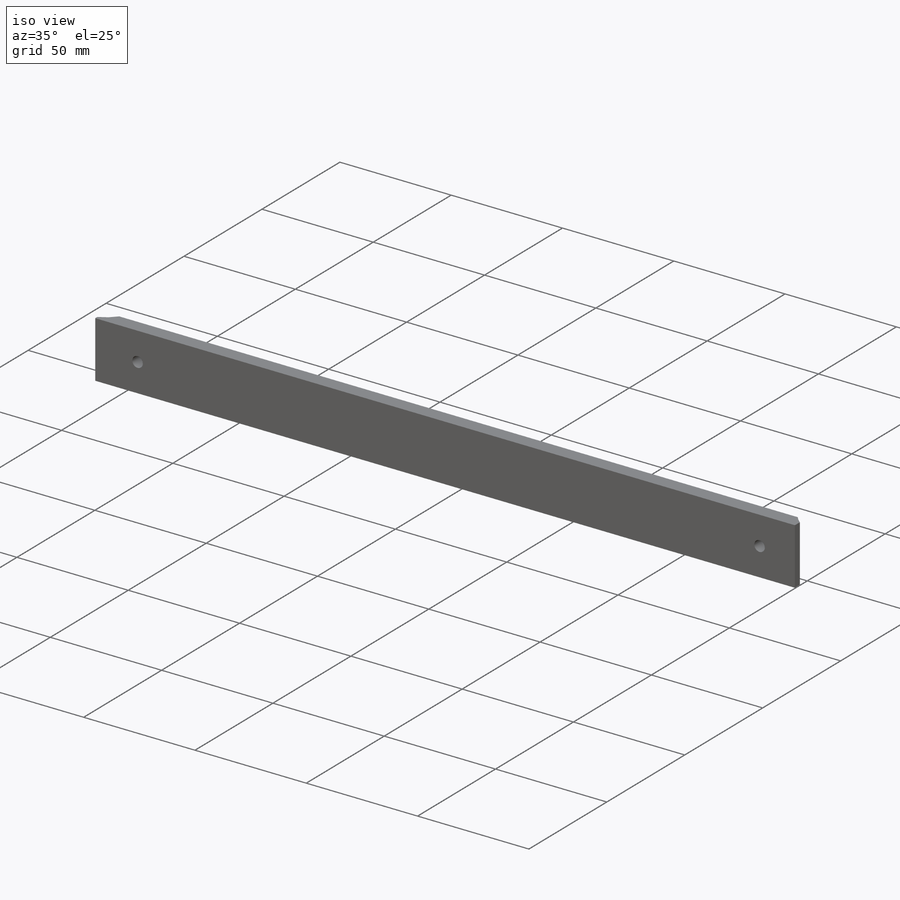
[diagram: iso view]
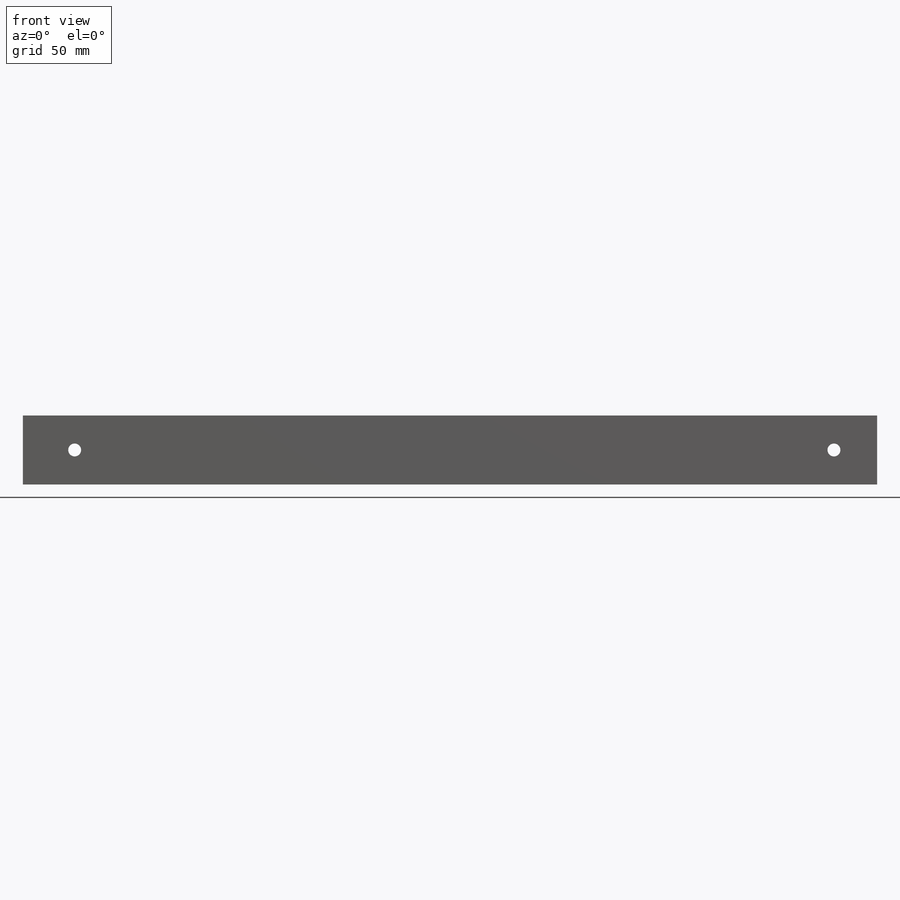
[diagram: front view]
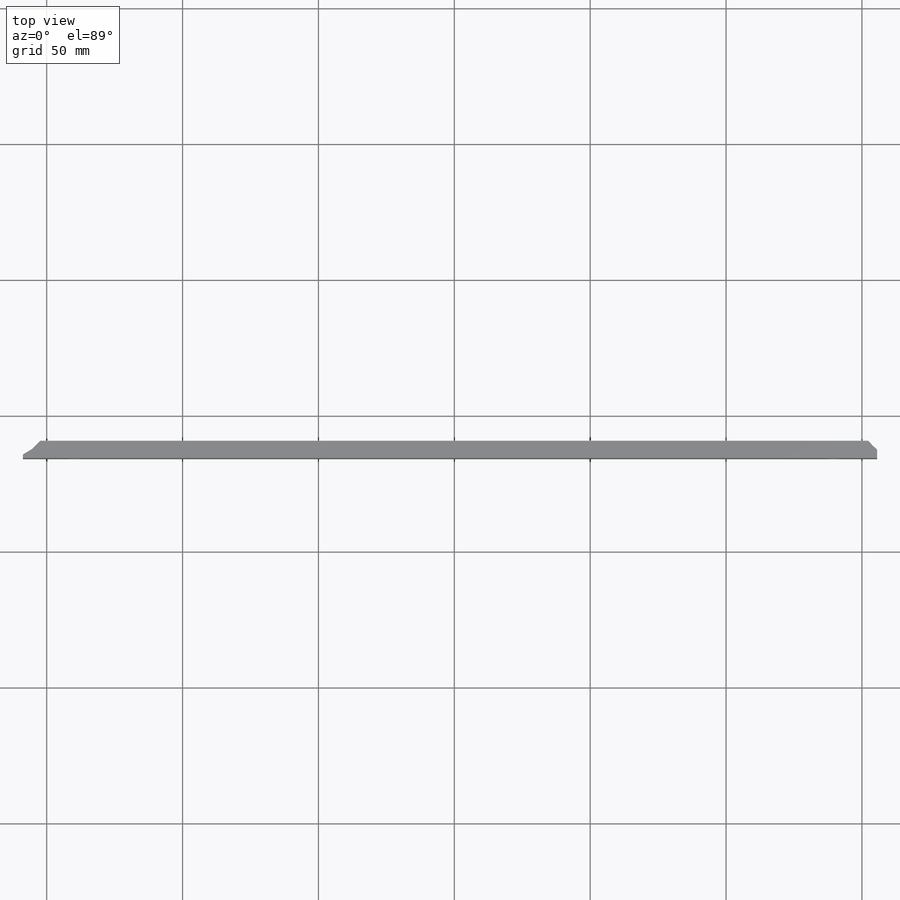
[diagram: top view]
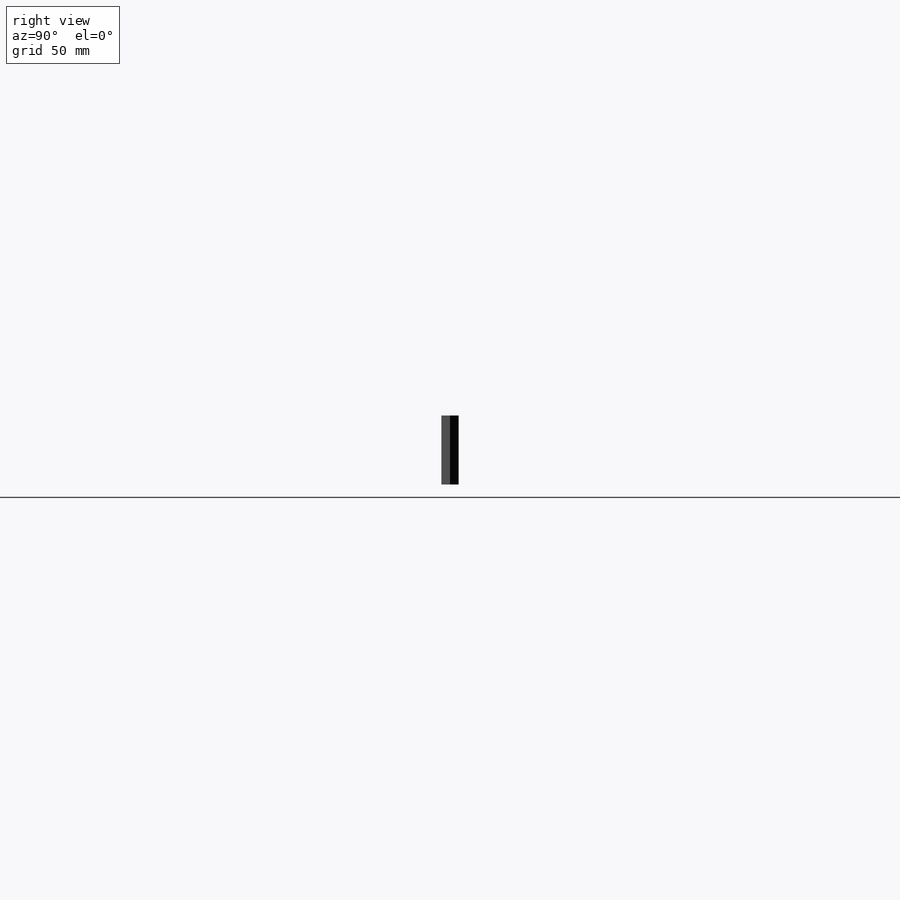
[diagram: right view]
SOLIDWORKS PART (.sldprt)
format: sldprt  version: not decoded by parser v0  size: 164,352 bytes
history: native  units: mm
features: sketch x4, material x1, extrude x1, cut_extrude x1, hole x1 (+16 scaffold rows collapsed)
feature tree (24):
  scaffold x16  (default folders/planes/origin — collapsed)
  material  "AISI 1010 Steel, hot rolled bar"
  sketch  "Sketch1"  dims[D1=31.75mm D2=330.2mm D4=6.35mm D5=9.525mm D3=6.35mm]
  extrude  "Base"  Depth=25.4mm
  sketch  "Sketch2"  dims[D1=9.652mm D2=279.4mm]
  cut_extrude  "Hole"  [1 undecoded]
  hole  "3/16 (0.1875) Diameter Hole1"  Diameter=4.7625mm Depth=6.35mm
  sketch  "Sketch4"  dims[D1=279.4mm]
  sketch  "Sketch3"  dims[hole-wizard template sketch: 60 standard entries collapsed; hole parameters kept: c18.Thru Hole Depth=6.35mm]
decode coverage: 6 of 7 modeling features carry decoded parameters
note: ~ marks probable driven/reference dimensions
note: 1 parameter value undecoded
note: suppression state not decoded; provenance and decode notes live in map.json
